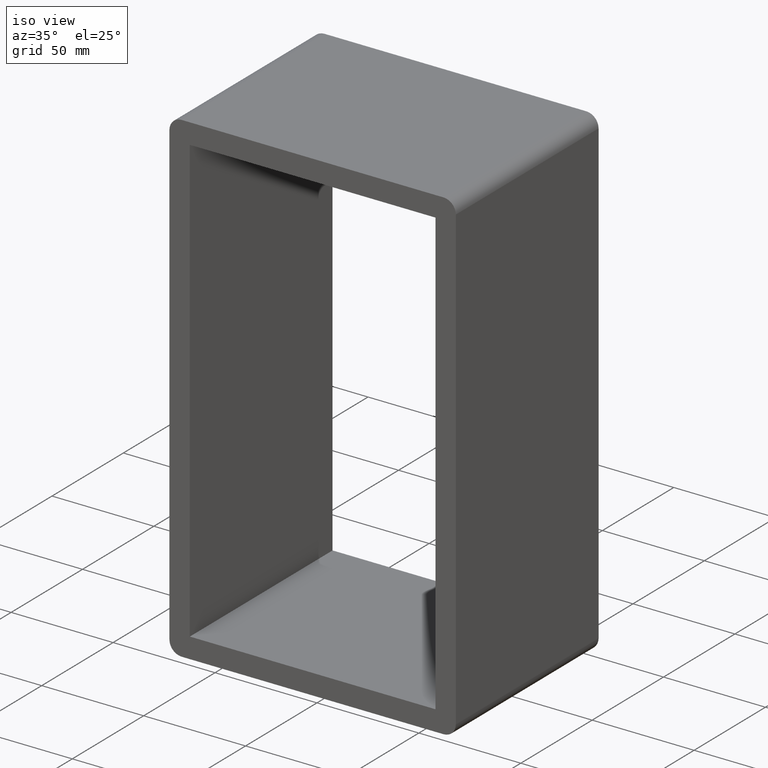
[diagram: clean part render]
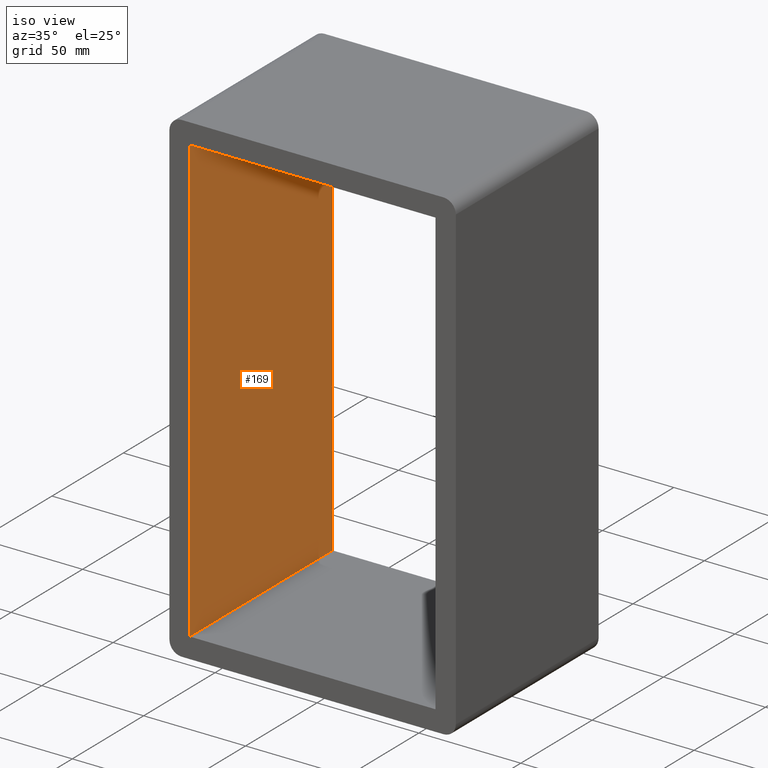
[diagram: same view with one face highlighted and labeled with its STEP entity id]
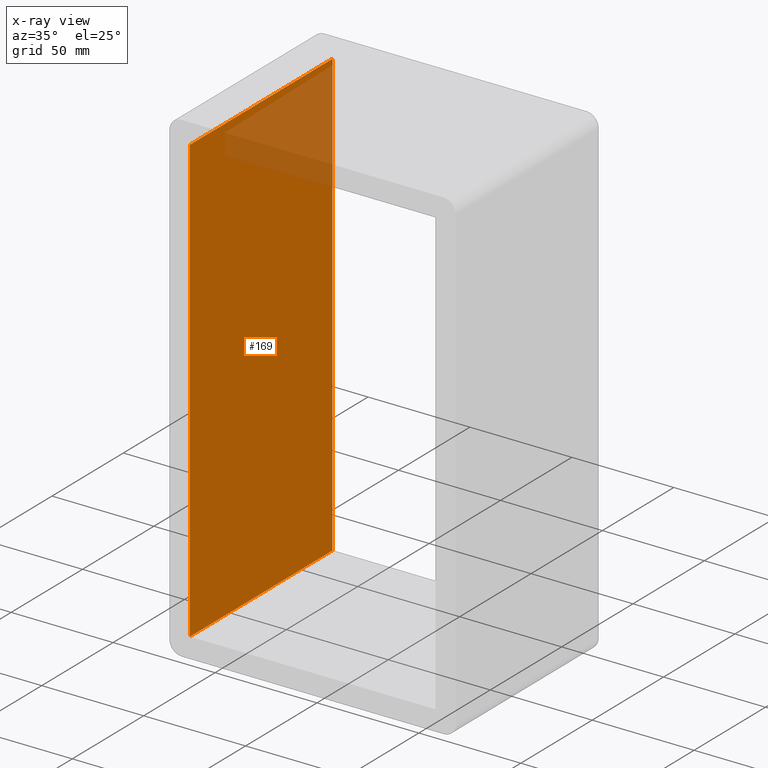
[diagram: x-ray of the same camera — body ghosted, the highlighted face saturated]
A machine part, iso view. The second image highlights one B-rep face of the part: STEP entity #169.
The next image is the same camera in x-ray: the body ghosted, the highlighted face saturated — about 11% of this face is hidden behind the body in this view.
In plain terms, the highlighted planar face has unit normal (-1, 0, 0).
Its self-contained STEP definition (entity closure, byte-faithful):
#114=CARTESIAN_POINT('',(-60.25,-3.0,108.99999999999997));
#115=VERTEX_POINT('',#114);
#122=CARTESIAN_POINT('',(-60.25,97.0,108.99999999999997));
#123=VERTEX_POINT('',#122);
#124=CARTESIAN_POINT('',(-60.25,-3.0,108.99999999999999));
#125=DIRECTION('',(0.0,1.0,0.0));
#126=VECTOR('',#125,100.0);
#127=LINE('',#124,#126);
#128=EDGE_CURVE('',#115,#123,#127,.T.);
#139=CARTESIAN_POINT('',(-60.25,0.0,-109.0));
#140=DIRECTION('',(-1.0,0.0,0.0));
#141=DIRECTION('',(0.0,0.0,1.0));
#142=AXIS2_PLACEMENT_3D('',#139,#140,#141);
#143=PLANE('',#142);
#144=ORIENTED_EDGE('',*,*,#128,.F.);
#145=CARTESIAN_POINT('',(-60.25,-3.0,-109.0));
#146=VERTEX_POINT('',#145);
#147=CARTESIAN_POINT('',(-60.25,-3.0,-109.0));
#148=DIRECTION('',(0.0,0.0,1.0));
#149=VECTOR('',#148,217.99999999999994);
#150=LINE('',#147,#149);
#151=EDGE_CURVE('',#146,#115,#150,.T.);
#152=ORIENTED_EDGE('',*,*,#151,.F.);
#153=CARTESIAN_POINT('',(-60.25,97.0,-109.0));
#154=VERTEX_POINT('',#153);
#155=CARTESIAN_POINT('',(-60.25,-3.0,-109.0));
#156=DIRECTION('',(0.0,1.0,0.0));
#157=VECTOR('',#156,100.0);
#158=LINE('',#155,#157);
#159=EDGE_CURVE('',#146,#154,#158,.T.);
#160=ORIENTED_EDGE('',*,*,#159,.T.);
#161=CARTESIAN_POINT('',(-60.25,97.0,108.99999999999994));
#162=DIRECTION('',(0.0,0.0,-1.0));
#163=VECTOR('',#162,217.99999999999994);
#164=LINE('',#161,#163);
#165=EDGE_CURVE('',#123,#154,#164,.T.);
#166=ORIENTED_EDGE('',*,*,#165,.F.);
#167=EDGE_LOOP('',(#144,#152,#160,#166));
#168=FACE_OUTER_BOUND('',#167,.T.);
#169=ADVANCED_FACE('',(#168),#143,.F.);